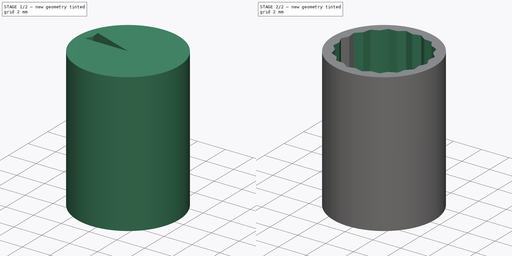
[diagram: build sequence overview — one tinted view per stage of 2, left to right]
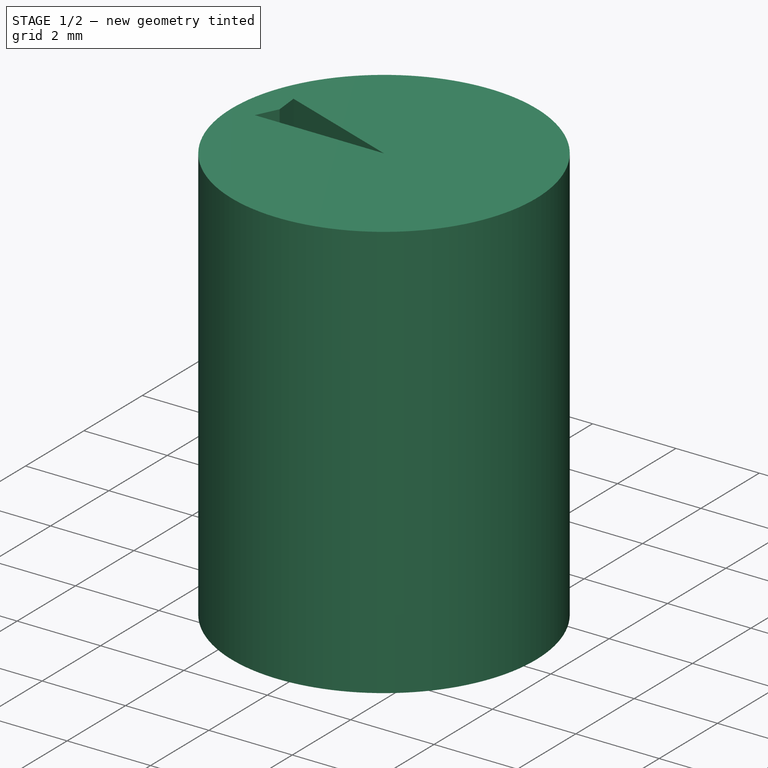
[diagram: stage 1 of 2 — iso view after this stage's code; geometry added in this stage tinted green]
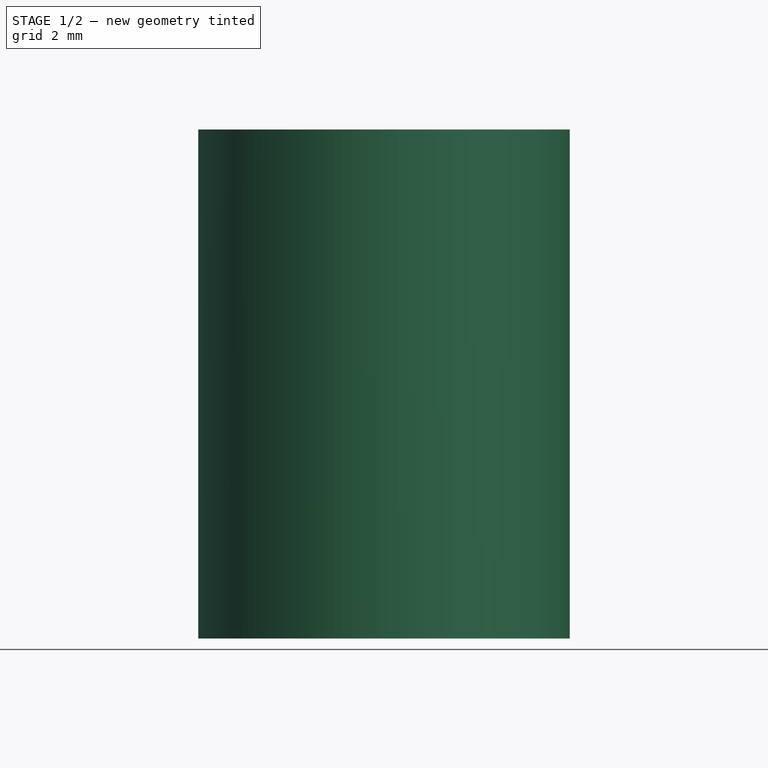
[diagram: stage 1 of 2 — front view after this stage's code; geometry added in this stage tinted green]
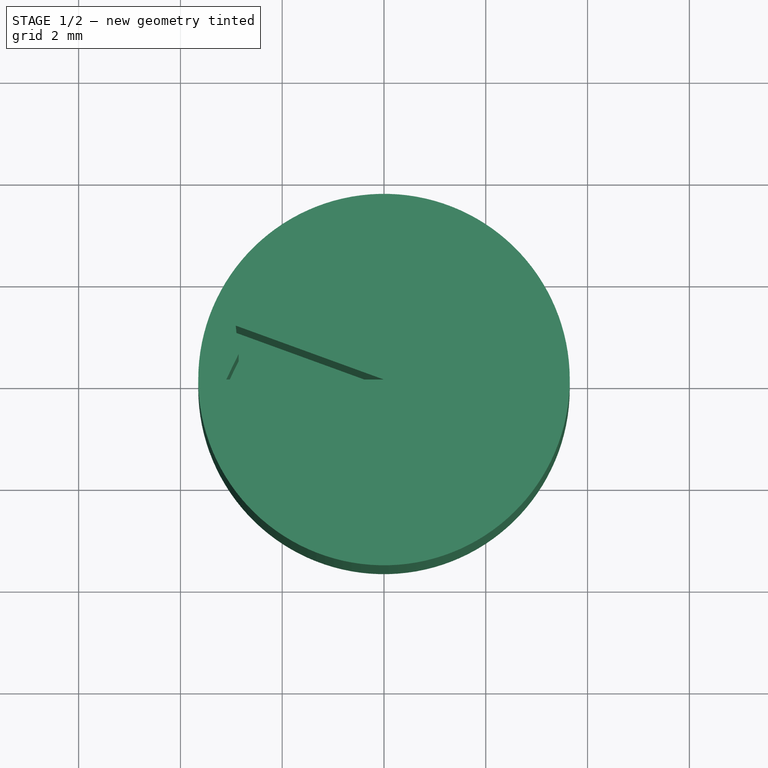
[diagram: stage 1 of 2 — top view after this stage's code; geometry added in this stage tinted green]
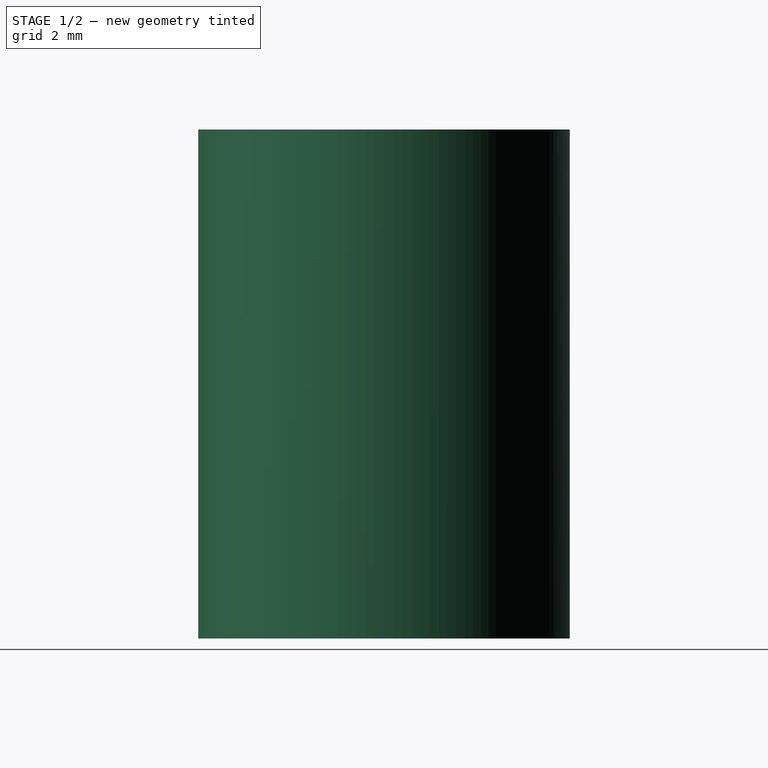
[diagram: stage 1 of 2 — right view after this stage's code; geometry added in this stage tinted green]
FCSTD DOCUMENT  (FreeCAD 0.18.3R)
Label: Knob
License: All rights reserved
LicenseURL: http://en.wikipedia.org/wiki/All_rights_reserved
objects: Sketcher::SketchObject×2, App::Part×1, PartDesign::Pad×1, PartDesign::Pocket×1, PartDesign::PolarPattern×1, PartDesign::Body×1
note: 8 computed .brp shape members not serialized (recipe doc carries the construction recipe); baked Part::Feature solids carry a one-line shape summary decoded from their .brp

FEATURE [App::Part] Part  label="InnerCilinder"
  Origin = -> Origin
FEATURE [Sketcher::SketchObject] Sketch
  MapMode = 5
  Support = -> [XY_Plane001]
  sketch-geometry (1):
    g0: Circle CenterX=0 CenterY=0 CenterZ=0 NormalX=0 NormalY=0 NormalZ=1 AngleXU=0 Radius=3.65
  constraints (2):
    c: Coincident(g0,g-1)
    c: Radius(g0) = 3.65
FEATURE [PartDesign::Pad] Pad
  Length = 10
  Length2 = 100
  Profile = -> Sketch
  Type = 0
FEATURE [Sketcher::SketchObject] Sketch001
  MapMode = 5
  Placement = pos=(0,0,10) rot=(0,0,1;0rad)
  Support = -> [Pad]
  sketch-geometry (10):
    g0: Circle [constr] CenterX=0 CenterY=0 CenterZ=0 NormalX=0 NormalY=0 NormalZ=1 AngleXU=0 Radius=2.9
    g1: Circle [constr] CenterX=0 CenterY=0 CenterZ=0 NormalX=0 NormalY=0 NormalZ=1 AngleXU=0 Radius=3.1
    g2: GeomPoint X=-3.1 Y=0 Z=0
    g3: GeomPoint X=-2.91305 Y=1.06026 Z=0
    g4: LineSegment StartX=-2.91305 StartY=1.06026 StartZ=0 EndX=0 EndY=0 EndZ=0
    g5: LineSegment StartX=-3.1 StartY=0 StartZ=0 EndX=0 EndY=0 EndZ=0
    g6: GeomPoint X=-2.85594 Y=0.50358 Z=0
    g7: LineSegment [constr] StartX=-2.85594 StartY=0.50358 StartZ=0 EndX=0 EndY=0 EndZ=0
    g8: LineSegment StartX=-3.1 StartY=0 StartZ=0 EndX=-2.85594 EndY=0.50358 EndZ=0
    g9: LineSegment StartX=-2.91305 StartY=1.06026 StartZ=0 EndX=-2.85594 EndY=0.50358 EndZ=0
  constraints (20):
    c: Coincident(g0,g-1)
    c: Coincident(g1,g-1)
    c: Radius(g0) = 2.9
    c: Radius(g1) = 3.1
    c: PointOnObject(g2,g1)
    c: PointOnObject(g2,g-1)
    c: PointOnObject(g3,g1)
    c: Coincident(g5,g2)
    c: Coincident(g5,g-1)
    c: Coincident(g4,g-1)
    c: Coincident(g4,g3)
    c: Angle(g4,g5) = 0.349066
    c: PointOnObject(g6,g0)
    c: Coincident(g7,g-1)
    c: Coincident(g7,g6)
    c: Angle(g7,g5) = 0.174533
    c: Coincident(g8,g2)
    c: Coincident(g8,g6)
    c: Coincident(g9,g3)
    c: Coincident(g9,g6)
FEATURE [PartDesign::Pocket] Pocket  label="hole20deg"
  BaseFeature = -> Pad
  Length = 8
  Length2 = 100
  Profile = -> Sketch001
  Type = 0
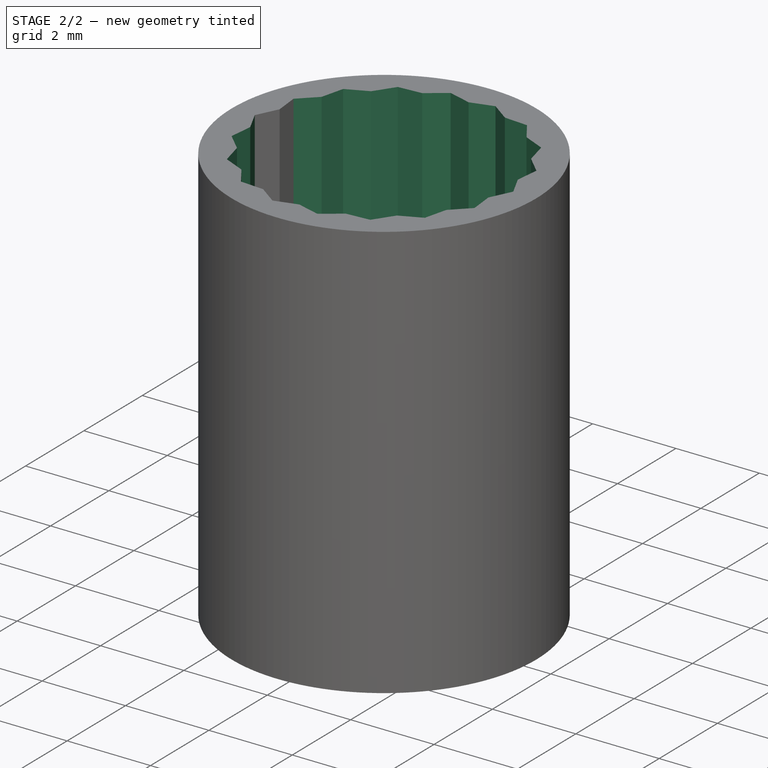
[diagram: stage 2 of 2 — iso view after this stage's code; geometry added in this stage tinted green]
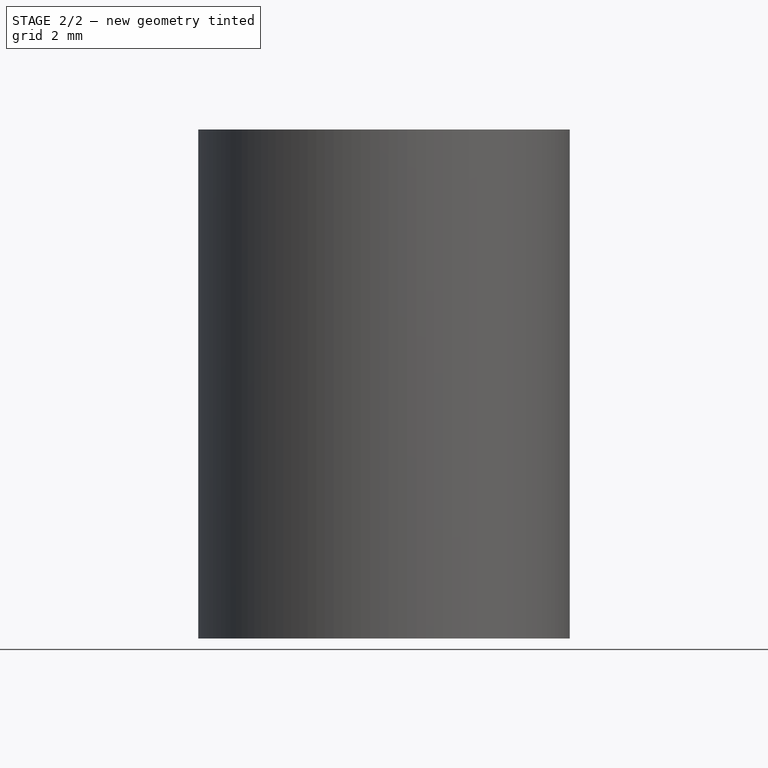
[diagram: stage 2 of 2 — front view after this stage's code; geometry added in this stage tinted green]
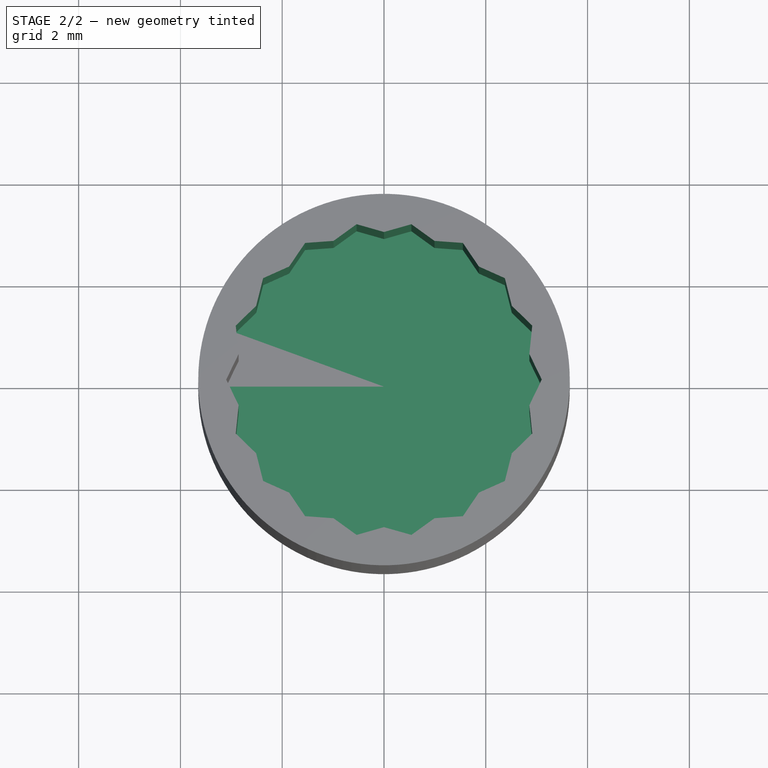
[diagram: stage 2 of 2 — top view after this stage's code; geometry added in this stage tinted green]
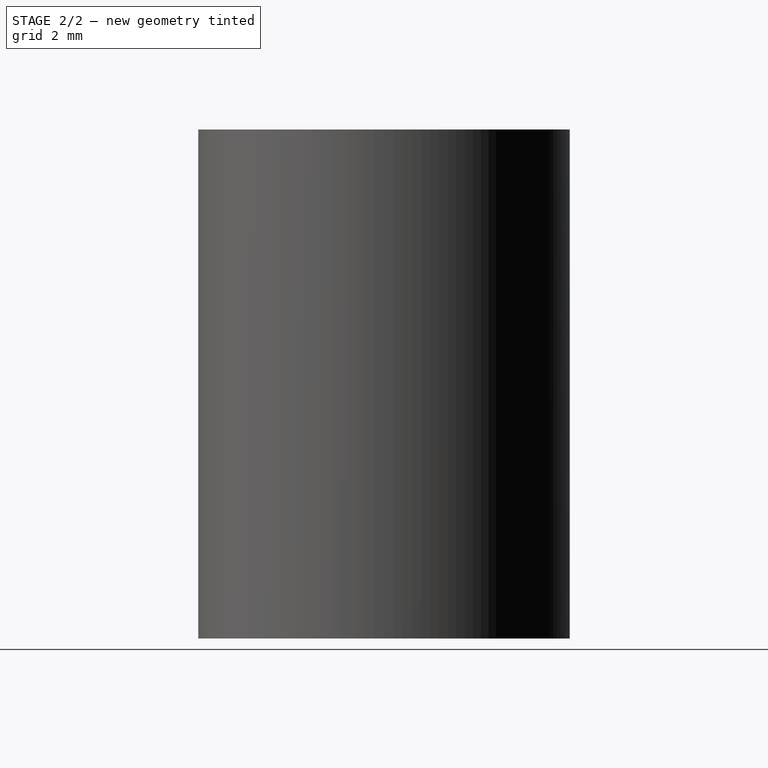
[diagram: stage 2 of 2 — right view after this stage's code; geometry added in this stage tinted green]
FEATURE [PartDesign::PolarPattern] PolarPattern  label="fullInnerHole"
  Angle = 360
  Axis = -> Sketch001 [N_Axis]
  BaseFeature = -> Pocket
  Occurrences = 18
  Originals = -> [Pocket]
FEATURE [PartDesign::Body] Body  label="outfit"
  Group = -> [Sketch,Pad,Sketch001,Pocket,PolarPattern]
  Origin = -> Origin001
  Tip = -> PolarPattern
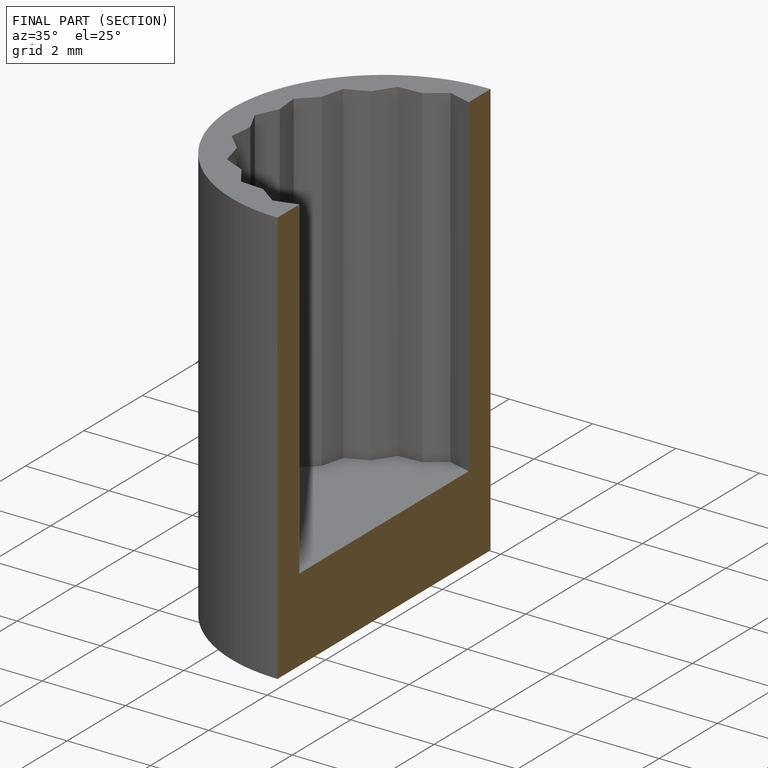
[diagram: finished part — half-section view (interior)]
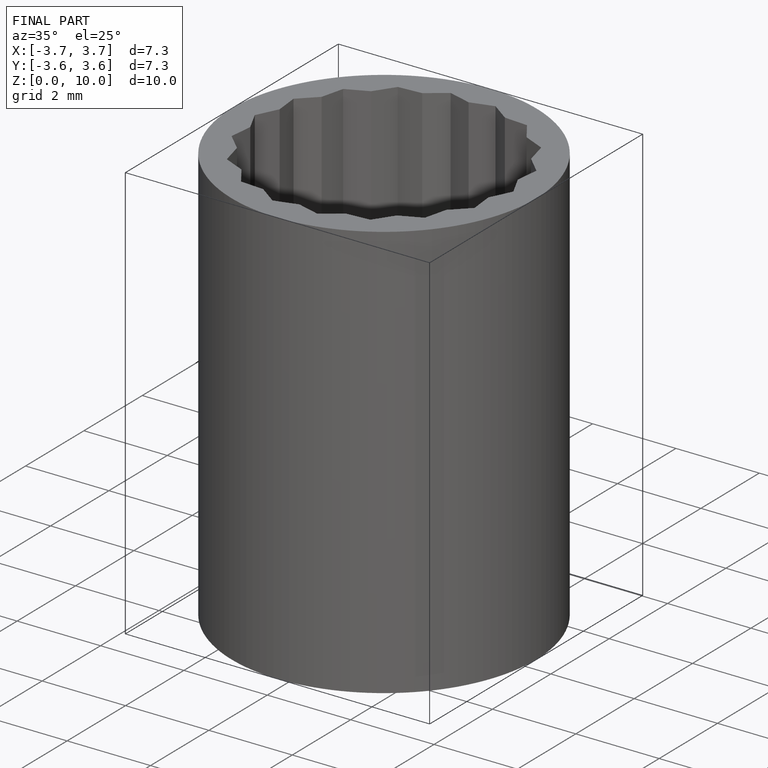
[diagram: finished part — iso view with bounding-box wireframe]
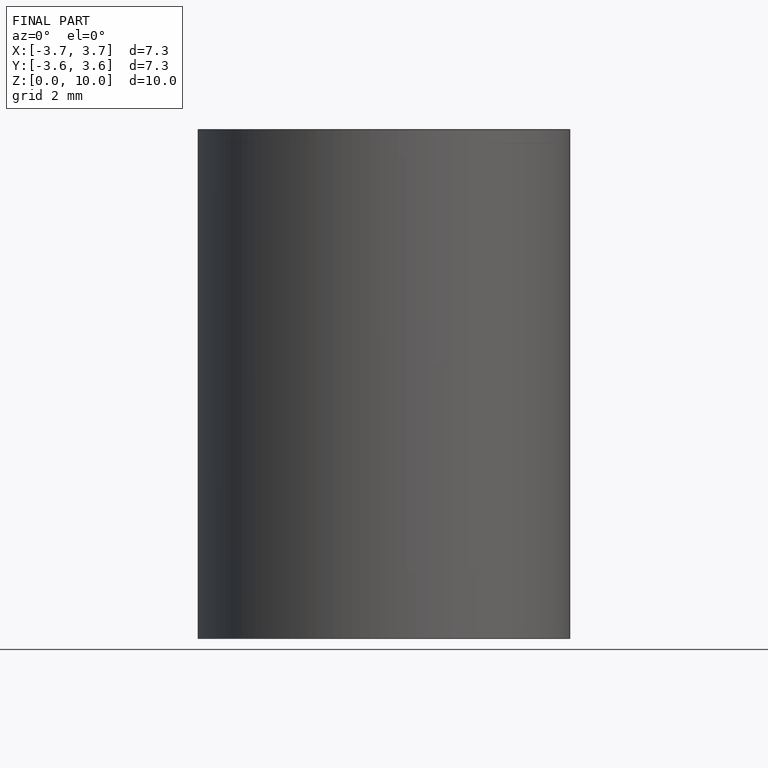
[diagram: finished part — front view with bounding-box wireframe]
